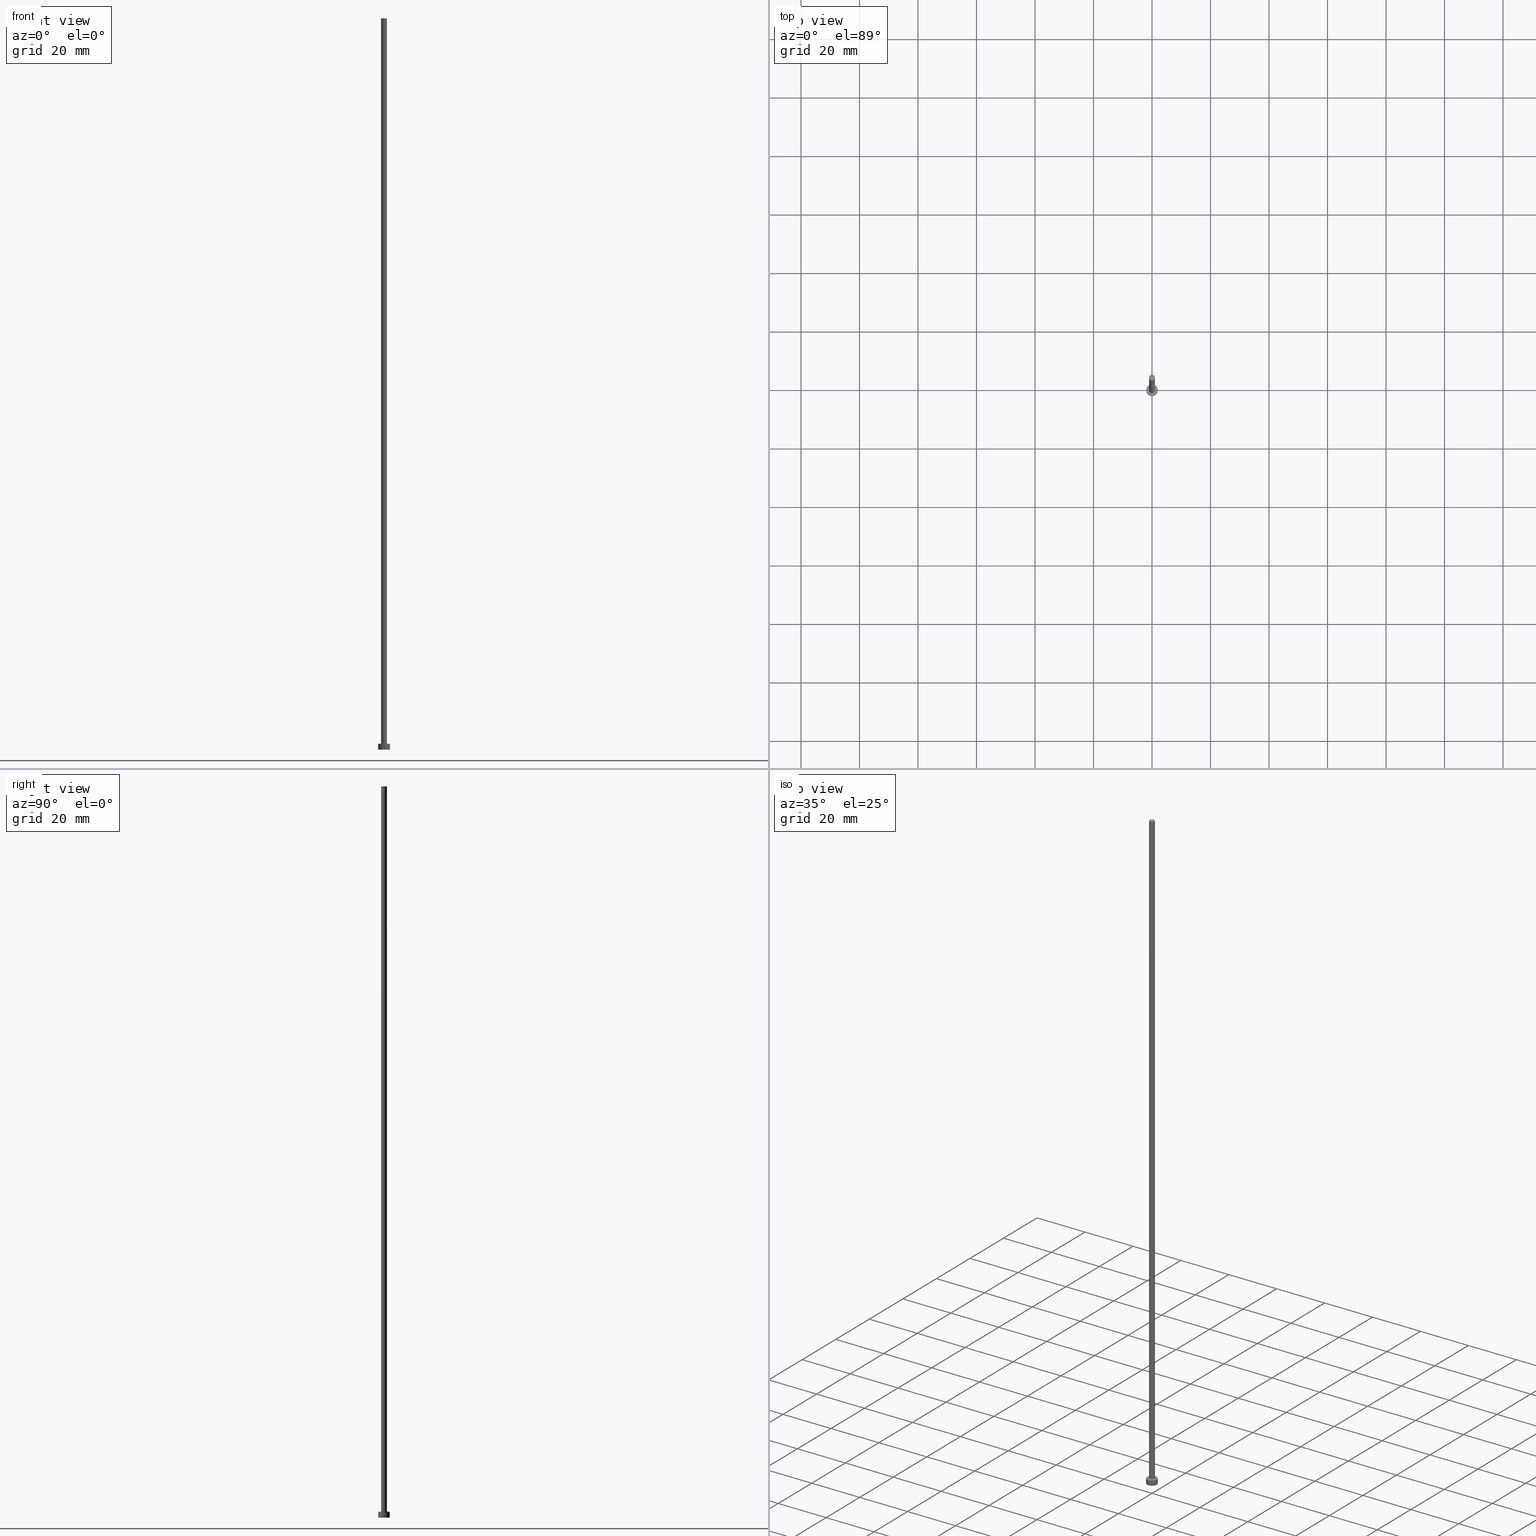
[diagram: canonical four-view strip — front | top / right | iso, engineering-drawing reading convention]
A machine part, canonical four-view strip (front | top / right | iso — engineering-drawing reading convention). The complete STEP part file that produces these views, byte-faithful:
ISO-10303-21;
HEADER;
FILE_DESCRIPTION (( 'STEP AP203' ),
    '1' );
FILE_NAME ('4315.STEP',
    '2023-02-13T14:55:21',
    ( '' ),
    ( '' ),
    'SwSTEP 2.0',
    'SolidWorks 2019',
    '' );
FILE_SCHEMA (( 'CONFIG_CONTROL_DESIGN' ));
ENDSEC;

DATA;
#1 = VERTEX_POINT ( 'NONE', #56 ) ;
#2 = DIRECTION ( 'NONE',  ( 1.000000000000000000, 0.000000000000000000, 0.000000000000000000 ) ) ;
#3 = DIRECTION ( 'NONE',  ( 0.000000000000000000, 0.000000000000000000, 1.000000000000000000 ) ) ;
#4 = CIRCLE ( 'NONE', #226, 1.000000000000000000 ) ;
#5 = DIRECTION ( 'NONE',  ( 0.000000000000000000, 0.000000000000000000, 1.000000000000000000 ) ) ;
#6 = DIRECTION ( 'NONE',  ( 1.000000000000000000, 0.000000000000000000, 0.000000000000000000 ) ) ;
#7 = FACE_OUTER_BOUND ( 'NONE', #215, .T. ) ;
#8 = CARTESIAN_POINT ( 'NONE',  ( 0.000000000000000000, 0.000000000000000000, 0.000000000000000000 ) ) ;
#9 = FACE_OUTER_BOUND ( 'NONE', #36, .T. ) ;
#10 = CC_DESIGN_PERSON_AND_ORGANIZATION_ASSIGNMENT ( #193, #99, ( #105 ) ) ;
#11 = EDGE_LOOP ( 'NONE', ( #234, #208 ) ) ;
#12 = APPROVAL_ROLE ( '' ) ;
#13 = CIRCLE ( 'NONE', #125, 2.000000000000000000 ) ;
#14 = PERSON_AND_ORGANIZATION ( #242, #38 ) ;
#15 = DATE_AND_TIME ( #77, #133 ) ;
#16 = PRODUCT_DEFINITION_SHAPE ( 'NONE', 'NONE',  #124 ) ;
#17 = CIRCLE ( 'NONE', #185, 2.000000000000000000 ) ;
#18 = CARTESIAN_POINT ( 'NONE',  ( 0.000000000000000000, 0.000000000000000000, 250.0000000000000000 ) ) ;
#19 = DIRECTION ( 'NONE',  ( 0.000000000000000000, 0.000000000000000000, 1.000000000000000000 ) ) ;
#20 = CC_DESIGN_PERSON_AND_ORGANIZATION_ASSIGNMENT ( #45, #55, ( #252 ) ) ;
#21 = AXIS2_PLACEMENT_3D ( 'NONE', #166, #243, #68 ) ;
#22 = CARTESIAN_POINT ( 'NONE',  ( 2.000000000000000000, 2.449293598294706414E-16, 2.000000000000000000 ) ) ;
#23 = ADVANCED_FACE ( 'NONE', ( #100 ), #178, .F. ) ;
#24 = CARTESIAN_POINT ( 'NONE',  ( -1.000000000000000000, 0.000000000000000000, 2.000000000000000000 ) ) ;
#25 = DIRECTION ( 'NONE',  ( -1.000000000000000000, 0.000000000000000000, 0.000000000000000000 ) ) ;
#26 = AXIS2_PLACEMENT_3D ( 'NONE', #51, #160, #57 ) ;
#27 = CARTESIAN_POINT ( 'NONE',  ( 1.000000000000000000, 1.224646799147353207E-16, 250.0000000000000000 ) ) ;
#28 = DIRECTION ( 'NONE',  ( 1.000000000000000000, 0.000000000000000000, 0.000000000000000000 ) ) ;
#29 = DIRECTION ( 'NONE',  ( -0.000000000000000000, -0.000000000000000000, -1.000000000000000000 ) ) ;
#30 = DIRECTION ( 'NONE',  ( 1.000000000000000000, 0.000000000000000000, 0.000000000000000000 ) ) ;
#31 = ORIENTED_EDGE ( 'NONE', *, *, #128, .F. ) ;
#32 = CC_DESIGN_PERSON_AND_ORGANIZATION_ASSIGNMENT ( #52, #209, ( #124 ) ) ;
#33 = ORIENTED_EDGE ( 'NONE', *, *, #236, .F. ) ;
#34 = APPROVAL_ROLE ( '' ) ;
#35 = LOCAL_TIME ( 15, 55, 21.00000000000000000, #248 ) ;
#36 = EDGE_LOOP ( 'NONE', ( #228, #218, #142, #50 ) ) ;
#37 = ORIENTED_EDGE ( 'NONE', *, *, #204, .T. ) ;
#38 = ORGANIZATION ( 'NEUR�EN�', 'NEUR�EN�', '' ) ;
#39 = ADVANCED_BREP_SHAPE_REPRESENTATION ( '4315', ( #86, #203 ), #81 ) ;
#40 = DIRECTION ( 'NONE',  ( 1.000000000000000000, 0.000000000000000000, 0.000000000000000000 ) ) ;
#41 = CC_DESIGN_PERSON_AND_ORGANIZATION_ASSIGNMENT ( #233, #78, ( #117 ) ) ;
#42 = EDGE_CURVE ( 'NONE', #93, #136, #141, .T. ) ;
#43 = LINE ( 'NONE', #27, #44 ) ;
#44 = VECTOR ( 'NONE', #29, 1000.000000000000000 ) ;
#45 = PERSON_AND_ORGANIZATION ( #242, #38 ) ;
#46 = ORIENTED_EDGE ( 'NONE', *, *, #70, .F. ) ;
#47 = CALENDAR_DATE ( 2023, 13, 2 ) ;
#48 = AXIS2_PLACEMENT_3D ( 'NONE', #127, #69, #30 ) ;
#49 = EDGE_CURVE ( 'NONE', #115, #79, #187, .T. ) ;
#50 = ORIENTED_EDGE ( 'NONE', *, *, #236, .T. ) ;
#51 = CARTESIAN_POINT ( 'NONE',  ( 0.000000000000000000, 0.000000000000000000, 0.000000000000000000 ) ) ;
#52 = PERSON_AND_ORGANIZATION ( #242, #38 ) ;
#53 = PERSON_AND_ORGANIZATION_ROLE ( 'creator' ) ;
#54 = ORIENTED_EDGE ( 'NONE', *, *, #177, .T. ) ;
#55 = PERSON_AND_ORGANIZATION_ROLE ( 'design_owner' ) ;
#56 = CARTESIAN_POINT ( 'NONE',  ( 2.000000000000000000, 2.449293598294706414E-16, 2.000000000000000000 ) ) ;
#57 = DIRECTION ( 'NONE',  ( 1.000000000000000000, 0.000000000000000000, 0.000000000000000000 ) ) ;
#58 = ORIENTED_EDGE ( 'NONE', *, *, #42, .F. ) ;
#59 = AXIS2_PLACEMENT_3D ( 'NONE', #18, #102, #255 ) ;
#60 = CC_DESIGN_PERSON_AND_ORGANIZATION_ASSIGNMENT ( #253, #53, ( #117 ) ) ;
#61 = DESIGN_CONTEXT ( 'detailed design', #121, 'design' ) ;
#62 = CYLINDRICAL_SURFACE ( 'NONE', #202, 1.000000000000000000 ) ;
#63 = CLOSED_SHELL ( 'NONE', ( #182, #169, #140, #195, #23, #211, #165 ) ) ;
#64 = CARTESIAN_POINT ( 'NONE',  ( -1.000000000000000000, 0.000000000000000000, 250.0000000000000000 ) ) ;
#65 = DIRECTION ( 'NONE',  ( 0.000000000000000000, 0.000000000000000000, 1.000000000000000000 ) ) ;
#66 = DIRECTION ( 'NONE',  ( 0.000000000000000000, 0.000000000000000000, 1.000000000000000000 ) ) ;
#67 = LOCAL_TIME ( 15, 55, 21.00000000000000000, #130 ) ;
#68 = DIRECTION ( 'NONE',  ( 1.000000000000000000, 0.000000000000000000, 0.000000000000000000 ) ) ;
#69 = DIRECTION ( 'NONE',  ( 0.000000000000000000, 0.000000000000000000, 1.000000000000000000 ) ) ;
#70 = EDGE_CURVE ( 'NONE', #79, #249, #139, .T. ) ;
#71 = CYLINDRICAL_SURFACE ( 'NONE', #224, 2.000000000000000000 ) ;
#72 = APPROVAL_DATE_TIME ( #192, #153 ) ;
#73 = CC_DESIGN_APPROVAL ( #153, ( #117 ) ) ;
#74 = EDGE_LOOP ( 'NONE', ( #158, #235, #156, #173 ) ) ;
#75 = APPROVAL_DATE_TIME ( #171, #110 ) ;
#76 = CALENDAR_DATE ( 2023, 13, 2 ) ;
#77 = CALENDAR_DATE ( 2023, 13, 2 ) ;
#78 = PERSON_AND_ORGANIZATION_ROLE ( 'design_supplier' ) ;
#79 = VERTEX_POINT ( 'NONE', #24 ) ;
#80 = FACE_OUTER_BOUND ( 'NONE', #155, .T. ) ;
#81 =( GEOMETRIC_REPRESENTATION_CONTEXT ( 3 ) GLOBAL_UNCERTAINTY_ASSIGNED_CONTEXT ( ( #239 ) ) GLOBAL_UNIT_ASSIGNED_CONTEXT ( ( #111, #113, #186 ) ) REPRESENTATION_CONTEXT ( 'NONE', 'WORKASPACE' ) );
#82 = FACE_OUTER_BOUND ( 'NONE', #74, .T. ) ;
#83 = VECTOR ( 'NONE', #101, 1000.000000000000000 ) ;
#84 = CARTESIAN_POINT ( 'NONE',  ( 0.000000000000000000, 0.000000000000000000, 250.0000000000000000 ) ) ;
#85 = PRODUCT_RELATED_PRODUCT_CATEGORY ( 'detail', '', ( #252 ) ) ;
#86 = MANIFOLD_SOLID_BREP ( 'P�idat vysunut�m3', #63 ) ;
#87 = AXIS2_PLACEMENT_3D ( 'NONE', #200, #88, #25 ) ;
#88 = DIRECTION ( 'NONE',  ( -0.000000000000000000, -0.000000000000000000, -1.000000000000000000 ) ) ;
#89 = CARTESIAN_POINT ( 'NONE',  ( -1.000000000000000000, 0.000000000000000000, 250.0000000000000000 ) ) ;
#90 = DIRECTION ( 'NONE',  ( -0.000000000000000000, -0.000000000000000000, -1.000000000000000000 ) ) ;
#91 = CYLINDRICAL_SURFACE ( 'NONE', #87, 1.000000000000000000 ) ;
#92 = CC_DESIGN_SECURITY_CLASSIFICATION ( #105, ( #117 ) ) ;
#93 = VERTEX_POINT ( 'NONE', #148 ) ;
#94 = CIRCLE ( 'NONE', #227, 1.000000000000000000 ) ;
#95 = COORDINATED_UNIVERSAL_TIME_OFFSET ( 1, 0, .AHEAD. ) ;
#96 = LOCAL_TIME ( 15, 55, 21.00000000000000000, #206 ) ;
#97 = ORIENTED_EDGE ( 'NONE', *, *, #49, .T. ) ;
#98 = PERSON_AND_ORGANIZATION ( #242, #38 ) ;
#99 = PERSON_AND_ORGANIZATION_ROLE ( 'classification_officer' ) ;
#100 = FACE_OUTER_BOUND ( 'NONE', #138, .T. ) ;
#101 = DIRECTION ( 'NONE',  ( -0.000000000000000000, -0.000000000000000000, -1.000000000000000000 ) ) ;
#102 = DIRECTION ( 'NONE',  ( 0.000000000000000000, 0.000000000000000000, 1.000000000000000000 ) ) ;
#103 = DIRECTION ( 'NONE',  ( 1.000000000000000000, 0.000000000000000000, -0.000000000000000000 ) ) ;
#104 = CARTESIAN_POINT ( 'NONE',  ( 0.000000000000000000, 0.000000000000000000, 2.000000000000000000 ) ) ;
#105 = SECURITY_CLASSIFICATION ( '', '', #176 ) ;
#106 = DIRECTION ( 'NONE',  ( -0.000000000000000000, -0.000000000000000000, -1.000000000000000000 ) ) ;
#107 = DIRECTION ( 'NONE',  ( -0.000000000000000000, -0.000000000000000000, -1.000000000000000000 ) ) ;
#108 = DIRECTION ( 'NONE',  ( 0.000000000000000000, 0.000000000000000000, 1.000000000000000000 ) ) ;
#109 = LOCAL_TIME ( 15, 55, 21.00000000000000000, #229 ) ;
#110 = APPROVAL ( #250, 'NEUR�EN�' ) ;
#111 =( LENGTH_UNIT ( ) NAMED_UNIT ( * ) SI_UNIT ( .MILLI., .METRE. ) );
#112 = DIRECTION ( 'NONE',  ( 1.000000000000000000, 0.000000000000000000, 0.000000000000000000 ) ) ;
#113 =( NAMED_UNIT ( * ) PLANE_ANGLE_UNIT ( ) SI_UNIT ( $, .RADIAN. ) );
#114 = PERSON_AND_ORGANIZATION ( #242, #38 ) ;
#115 = VERTEX_POINT ( 'NONE', #64 ) ;
#116 = APPROVAL_STATUS ( 'not_yet_approved' ) ;
#117 = PRODUCT_DEFINITION_FORMATION_WITH_SPECIFIED_SOURCE ( 'LIBOVOLN�', '', #252, .NOT_KNOWN. ) ;
#118 = EDGE_LOOP ( 'NONE', ( #46, #191 ) ) ;
#119 = FACE_OUTER_BOUND ( 'NONE', #11, .T. ) ;
#120 = CARTESIAN_POINT ( 'NONE',  ( -2.000000000000000000, 0.000000000000000000, 2.000000000000000000 ) ) ;
#121 = APPLICATION_CONTEXT ( 'configuration controlled 3d designs of mechanical parts and assemblies' ) ;
#122 = CARTESIAN_POINT ( 'NONE',  ( 0.000000000000000000, 0.000000000000000000, 2.000000000000000000 ) ) ;
#123 = DIRECTION ( 'NONE',  ( -0.000000000000000000, -0.000000000000000000, -1.000000000000000000 ) ) ;
#124 = PRODUCT_DEFINITION ( 'NEZN�M�', '', #117, #61 ) ;
#125 = AXIS2_PLACEMENT_3D ( 'NONE', #8, #66, #167 ) ;
#126 = CARTESIAN_POINT ( 'NONE',  ( 1.000000000000000000, 1.224646799147353207E-16, 250.0000000000000000 ) ) ;
#127 = CARTESIAN_POINT ( 'NONE',  ( 0.000000000000000000, 0.000000000000000000, 250.0000000000000000 ) ) ;
#128 = EDGE_CURVE ( 'NONE', #115, #231, #237, .T. ) ;
#129 = AXIS2_PLACEMENT_3D ( 'NONE', #146, #225, #28 ) ;
#130 = COORDINATED_UNIVERSAL_TIME_OFFSET ( 1, 0, .AHEAD. ) ;
#131 = ORIENTED_EDGE ( 'NONE', *, *, #149, .T. ) ;
#132 = DATE_TIME_ROLE ( 'creation_date' ) ;
#133 = LOCAL_TIME ( 15, 55, 21.00000000000000000, #95 ) ;
#134 = ORIENTED_EDGE ( 'NONE', *, *, #177, .F. ) ;
#135 = SHAPE_DEFINITION_REPRESENTATION ( #16, #39 ) ;
#136 = VERTEX_POINT ( 'NONE', #168 ) ;
#137 = CALENDAR_DATE ( 2023, 13, 2 ) ;
#138 = EDGE_LOOP ( 'NONE', ( #33, #212 ) ) ;
#139 = CIRCLE ( 'NONE', #21, 1.000000000000000000 ) ;
#140 = ADVANCED_FACE ( 'NONE', ( #9 ), #71, .T. ) ;
#141 = LINE ( 'NONE', #120, #172 ) ;
#142 = ORIENTED_EDGE ( 'NONE', *, *, #42, .T. ) ;
#143 = DIRECTION ( 'NONE',  ( -1.000000000000000000, 0.000000000000000000, 0.000000000000000000 ) ) ;
#144 = LINE ( 'NONE', #22, #83 ) ;
#145 = FACE_BOUND ( 'NONE', #118, .T. ) ;
#146 = CARTESIAN_POINT ( 'NONE',  ( 0.000000000000000000, 0.000000000000000000, 2.000000000000000000 ) ) ;
#147 = APPROVAL_PERSON_ORGANIZATION ( #114, #110, #12 ) ;
#148 = CARTESIAN_POINT ( 'NONE',  ( -2.000000000000000000, 0.000000000000000000, 2.000000000000000000 ) ) ;
#149 = EDGE_CURVE ( 'NONE', #170, #136, #246, .T. ) ;
#150 = MECHANICAL_CONTEXT ( 'NONE', #207, 'mechanical' ) ;
#151 = CARTESIAN_POINT ( 'NONE',  ( 0.000000000000000000, 0.000000000000000000, 2.000000000000000000 ) ) ;
#152 = DATE_TIME_ROLE ( 'classification_date' ) ;
#153 = APPROVAL ( #116, 'NEUR�EN�' ) ;
#154 = DIRECTION ( 'NONE',  ( -0.000000000000000000, -0.000000000000000000, -1.000000000000000000 ) ) ;
#155 = EDGE_LOOP ( 'NONE', ( #134, #37, #131, #58 ) ) ;
#156 = ORIENTED_EDGE ( 'NONE', *, *, #238, .T. ) ;
#157 = DATE_AND_TIME ( #76, #67 ) ;
#158 = ORIENTED_EDGE ( 'NONE', *, *, #199, .F. ) ;
#159 = APPROVAL_STATUS ( 'not_yet_approved' ) ;
#160 = DIRECTION ( 'NONE',  ( 0.000000000000000000, 0.000000000000000000, 1.000000000000000000 ) ) ;
#161 = AXIS2_PLACEMENT_3D ( 'NONE', #254, #19, #103 ) ;
#162 = CC_DESIGN_DATE_AND_TIME_ASSIGNMENT ( #157, #132, ( #124 ) ) ;
#163 = DIRECTION ( 'NONE',  ( -1.000000000000000000, 0.000000000000000000, 0.000000000000000000 ) ) ;
#164 = APPROVAL_PERSON_ORGANIZATION ( #98, #179, #175 ) ;
#165 = ADVANCED_FACE ( 'NONE', ( #119 ), #194, .T. ) ;
#166 = CARTESIAN_POINT ( 'NONE',  ( 0.000000000000000000, 0.000000000000000000, 2.000000000000000000 ) ) ;
#167 = DIRECTION ( 'NONE',  ( 1.000000000000000000, 0.000000000000000000, 0.000000000000000000 ) ) ;
#168 = CARTESIAN_POINT ( 'NONE',  ( -2.000000000000000000, 0.000000000000000000, 0.000000000000000000 ) ) ;
#169 = ADVANCED_FACE ( 'NONE', ( #80 ), #219, .T. ) ;
#170 = VERTEX_POINT ( 'NONE', #196 ) ;
#171 = DATE_AND_TIME ( #137, #35 ) ;
#172 = VECTOR ( 'NONE', #107, 1000.000000000000000 ) ;
#173 = ORIENTED_EDGE ( 'NONE', *, *, #49, .F. ) ;
#174 = ORIENTED_EDGE ( 'NONE', *, *, #221, .T. ) ;
#175 = APPROVAL_ROLE ( '' ) ;
#176 = SECURITY_CLASSIFICATION_LEVEL ( 'unclassified' ) ;
#177 = EDGE_CURVE ( 'NONE', #1, #93, #17, .T. ) ;
#178 = PLANE ( 'NONE',  #161 ) ;
#179 = APPROVAL ( #159, 'NEUR�EN�' ) ;
#180 = CC_DESIGN_APPROVAL ( #110, ( #124 ) ) ;
#181 = DIRECTION ( 'NONE',  ( 0.000000000000000000, 0.000000000000000000, 1.000000000000000000 ) ) ;
#182 = ADVANCED_FACE ( 'NONE', ( #82 ), #62, .T. ) ;
#183 = PLANE ( 'NONE',  #216 ) ;
#184 = CARTESIAN_POINT ( 'NONE',  ( 0.000000000000000000, 0.000000000000000000, 0.000000000000000000 ) ) ;
#185 = AXIS2_PLACEMENT_3D ( 'NONE', #104, #181, #2 ) ;
#186 =( NAMED_UNIT ( * ) SI_UNIT ( $, .STERADIAN. ) SOLID_ANGLE_UNIT ( ) );
#187 = LINE ( 'NONE', #89, #214 ) ;
#188 = EDGE_LOOP ( 'NONE', ( #174, #54 ) ) ;
#189 = APPLICATION_PROTOCOL_DEFINITION ( 'international standard', 'config_control_design', 1994, #121 ) ;
#190 = AXIS2_PLACEMENT_3D ( 'NONE', #122, #123, #163 ) ;
#191 = ORIENTED_EDGE ( 'NONE', *, *, #238, .F. ) ;
#192 = DATE_AND_TIME ( #245, #96 ) ;
#193 = PERSON_AND_ORGANIZATION ( #242, #38 ) ;
#194 = PLANE ( 'NONE',  #59 ) ;
#195 = ADVANCED_FACE ( 'NONE', ( #145, #198 ), #183, .T. ) ;
#196 = CARTESIAN_POINT ( 'NONE',  ( 2.000000000000000000, 2.449293598294706414E-16, 0.000000000000000000 ) ) ;
#197 = CARTESIAN_POINT ( 'NONE',  ( 0.000000000000000000, 0.000000000000000000, 250.0000000000000000 ) ) ;
#198 = FACE_OUTER_BOUND ( 'NONE', #188, .T. ) ;
#199 = EDGE_CURVE ( 'NONE', #231, #115, #94, .T. ) ;
#200 = CARTESIAN_POINT ( 'NONE',  ( 0.000000000000000000, 0.000000000000000000, 250.0000000000000000 ) ) ;
#201 = CARTESIAN_POINT ( 'NONE',  ( 0.000000000000000000, 0.000000000000000000, 2.000000000000000000 ) ) ;
#202 = AXIS2_PLACEMENT_3D ( 'NONE', #84, #106, #143 ) ;
#203 = AXIS2_PLACEMENT_3D ( 'NONE', #184, #3, #6 ) ;
#204 = EDGE_CURVE ( 'NONE', #1, #170, #144, .T. ) ;
#205 = ORIENTED_EDGE ( 'NONE', *, *, #232, .F. ) ;
#206 = COORDINATED_UNIVERSAL_TIME_OFFSET ( 1, 0, .AHEAD. ) ;
#207 = APPLICATION_CONTEXT ( 'configuration controlled 3d designs of mechanical parts and assemblies' ) ;
#208 = ORIENTED_EDGE ( 'NONE', *, *, #199, .T. ) ;
#209 = PERSON_AND_ORGANIZATION_ROLE ( 'creator' ) ;
#210 = APPROVAL_PERSON_ORGANIZATION ( #14, #153, #34 ) ;
#211 = ADVANCED_FACE ( 'NONE', ( #7 ), #91, .T. ) ;
#212 = ORIENTED_EDGE ( 'NONE', *, *, #149, .F. ) ;
#213 = DATE_AND_TIME ( #47, #109 ) ;
#214 = VECTOR ( 'NONE', #90, 1000.000000000000000 ) ;
#215 = EDGE_LOOP ( 'NONE', ( #205, #31, #97, #220 ) ) ;
#216 = AXIS2_PLACEMENT_3D ( 'NONE', #201, #108, #217 ) ;
#217 = DIRECTION ( 'NONE',  ( 1.000000000000000000, 0.000000000000000000, -0.000000000000000000 ) ) ;
#218 = ORIENTED_EDGE ( 'NONE', *, *, #221, .F. ) ;
#219 = CYLINDRICAL_SURFACE ( 'NONE', #190, 2.000000000000000000 ) ;
#220 = ORIENTED_EDGE ( 'NONE', *, *, #70, .T. ) ;
#221 = EDGE_CURVE ( 'NONE', #93, #1, #240, .T. ) ;
#222 = CARTESIAN_POINT ( 'NONE',  ( 0.000000000000000000, 0.000000000000000000, 2.000000000000000000 ) ) ;
#223 = CC_DESIGN_DATE_AND_TIME_ASSIGNMENT ( #15, #152, ( #105 ) ) ;
#224 = AXIS2_PLACEMENT_3D ( 'NONE', #151, #154, #230 ) ;
#225 = DIRECTION ( 'NONE',  ( 0.000000000000000000, 0.000000000000000000, 1.000000000000000000 ) ) ;
#226 = AXIS2_PLACEMENT_3D ( 'NONE', #222, #5, #112 ) ;
#227 = AXIS2_PLACEMENT_3D ( 'NONE', #197, #65, #40 ) ;
#228 = ORIENTED_EDGE ( 'NONE', *, *, #204, .F. ) ;
#229 = COORDINATED_UNIVERSAL_TIME_OFFSET ( 1, 0, .AHEAD. ) ;
#230 = DIRECTION ( 'NONE',  ( -1.000000000000000000, 0.000000000000000000, 0.000000000000000000 ) ) ;
#231 = VERTEX_POINT ( 'NONE', #126 ) ;
#232 = EDGE_CURVE ( 'NONE', #231, #249, #43, .T. ) ;
#233 = PERSON_AND_ORGANIZATION ( #242, #38 ) ;
#234 = ORIENTED_EDGE ( 'NONE', *, *, #128, .T. ) ;
#235 = ORIENTED_EDGE ( 'NONE', *, *, #232, .T. ) ;
#236 = EDGE_CURVE ( 'NONE', #136, #170, #13, .T. ) ;
#237 = CIRCLE ( 'NONE', #48, 1.000000000000000000 ) ;
#238 = EDGE_CURVE ( 'NONE', #249, #79, #4, .T. ) ;
#239 = UNCERTAINTY_MEASURE_WITH_UNIT (LENGTH_MEASURE( 1.000000000000000082E-05 ), #111, 'distance_accuracy_value', 'NONE');
#240 = CIRCLE ( 'NONE', #129, 2.000000000000000000 ) ;
#241 = APPLICATION_PROTOCOL_DEFINITION ( 'international standard', 'config_control_design', 1994, #207 ) ;
#242 = PERSON ( 'NEUR�EN�', 'NEUR�EN�', 'NEUR�EN�', ('NEUR�EN�'), ('NEUR�EN�'), ('NEUR�EN�') ) ;
#243 = DIRECTION ( 'NONE',  ( 0.000000000000000000, 0.000000000000000000, 1.000000000000000000 ) ) ;
#244 = CARTESIAN_POINT ( 'NONE',  ( 1.000000000000000000, 1.224646799147353207E-16, 2.000000000000000000 ) ) ;
#245 = CALENDAR_DATE ( 2023, 13, 2 ) ;
#246 = CIRCLE ( 'NONE', #26, 2.000000000000000000 ) ;
#247 = CC_DESIGN_APPROVAL ( #179, ( #105 ) ) ;
#248 = COORDINATED_UNIVERSAL_TIME_OFFSET ( 1, 0, .AHEAD. ) ;
#249 = VERTEX_POINT ( 'NONE', #244 ) ;
#250 = APPROVAL_STATUS ( 'not_yet_approved' ) ;
#251 = APPROVAL_DATE_TIME ( #213, #179 ) ;
#252 = PRODUCT ( '4315', '4315', '', ( #150 ) ) ;
#253 = PERSON_AND_ORGANIZATION ( #242, #38 ) ;
#254 = CARTESIAN_POINT ( 'NONE',  ( 0.000000000000000000, 0.000000000000000000, 0.000000000000000000 ) ) ;
#255 = DIRECTION ( 'NONE',  ( 1.000000000000000000, 0.000000000000000000, -0.000000000000000000 ) ) ;
ENDSEC;
END-ISO-10303-21;
